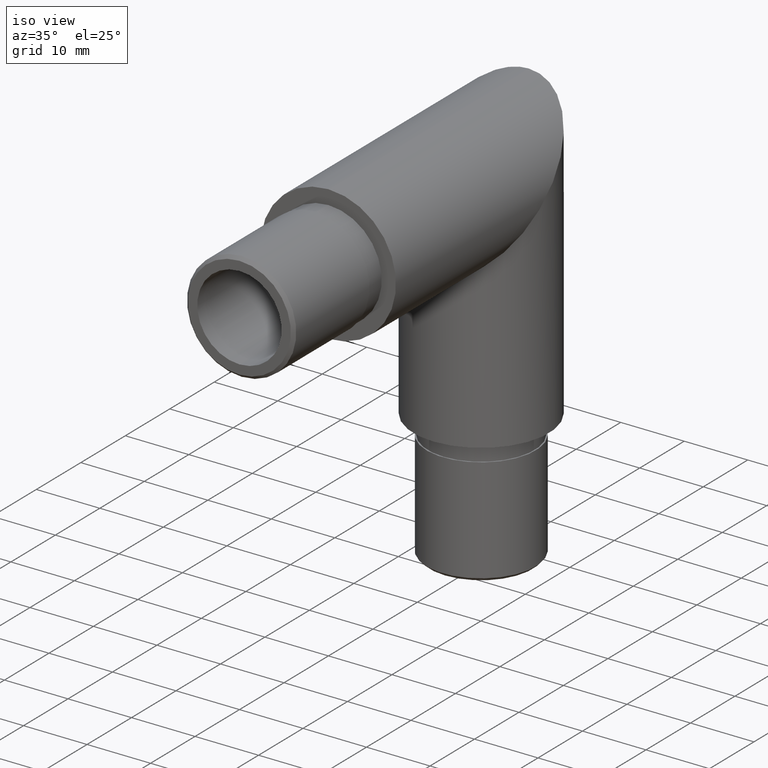
[diagram: clean part render]
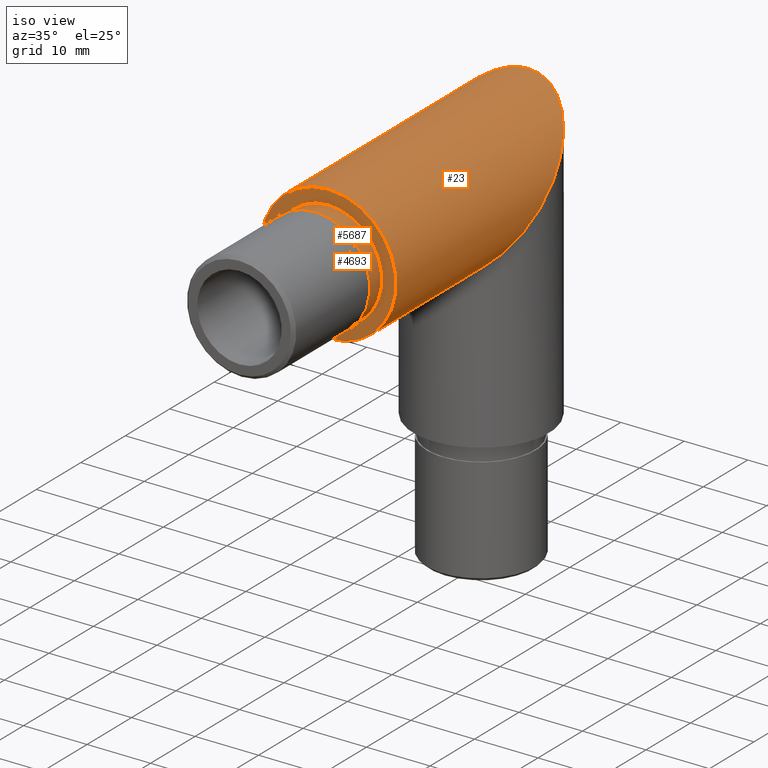
[diagram: same view with one multi-face feature highlighted, each face labeled with its STEP entity id]
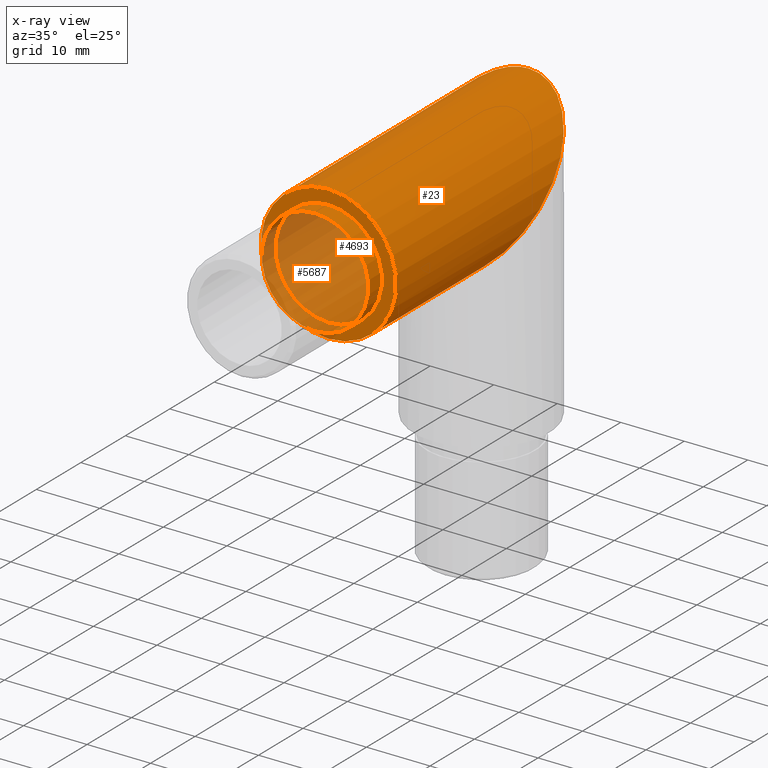
[diagram: x-ray of the same camera — body ghosted, the whole feature saturated]
A machine part, iso view. The highlighted faces form ONE feature: a stepped (counterbored) hole: 2 coaxial cylindrical walls of radii 8.4 -> 10.65 mm joined by 1 annular planar shoulder face(s). The faces share edges in the B-rep.
The next image is the same camera in x-ray: the body ghosted and the whole hole feature saturated, so the bore chain is visible through the body.
Their STEP definitions:
[1] entity #23 (Cylinder):
#23 = ADVANCED_FACE ( 'NONE', ( #12426, #4582 ), #605, .T. ) ;
#605 = CYLINDRICAL_SURFACE ( 'NONE', #1907, 10.65000000000000000 ) ;
#1607 = CARTESIAN_POINT ( 'NONE',  ( 0.0000000000000000000, 23.69999999999995700, -10.65000000000000000 ) ) ;
#1907 = AXIS2_PLACEMENT_3D ( 'NONE', #5739, #2784, #5821 ) ;
#2426 = CARTESIAN_POINT ( 'NONE',  ( -1.304248841091931300E-015, 45.00000000000002800, 10.65000000000000000 ) ) ;
#2784 = DIRECTION ( 'NONE',  ( -0.0000000000000000000, -1.000000000000000000, -0.0000000000000000000 ) ) ;
#3323 = CIRCLE ( 'NONE', #9449, 10.65000000000000000 ) ;
#3521 = CARTESIAN_POINT ( 'NONE',  ( 21.29999999999999700, 23.69999999999995700, -10.65000000000000000 ) ) ;
#4582 = FACE_OUTER_BOUND ( 'NONE', #6563, .T. ) ;
#5596 = DIRECTION ( 'NONE',  ( 0.0000000000000000000, 1.000000000000000000, 0.0000000000000000000 ) ) ;
#5739 = CARTESIAN_POINT ( 'NONE',  ( 0.0000000000000000000, 64.47274887854692300, 0.0000000000000000000 ) ) ;
#5821 = DIRECTION ( 'NONE',  ( 0.0000000000000000000, 0.0000000000000000000, -1.000000000000000000 ) ) ;
#5947 = VERTEX_POINT ( 'NONE', #8782 ) ;
#6037 = EDGE_CURVE ( 'NONE', #9332, #9332, #10335, .T. ) ;
#6563 = EDGE_LOOP ( 'NONE', ( #8832 ) ) ;
#7808 = CARTESIAN_POINT ( 'NONE',  ( 0.0000000000000000000, 0.0000000000000000000, 0.0000000000000000000 ) ) ;
#8604 = CARTESIAN_POINT ( 'NONE',  ( -21.29999999999999700, 23.69999999999995700, -10.65000000000000000 ) ) ;
#8690 = CARTESIAN_POINT ( 'NONE',  ( 0.0000000000000000000, 23.69999999999995700, -10.65000000000000000 ) ) ;
#8727 = CARTESIAN_POINT ( 'NONE',  ( -21.29999999999999700, 45.00000000000002800, 10.64999999999999700 ) ) ;
#8782 = CARTESIAN_POINT ( 'NONE',  ( 0.0000000000000000000, 0.0000000000000000000, 10.65000000000000000 ) ) ;
#8832 = ORIENTED_EDGE ( 'NONE', *, *, #6037, .F. ) ;
#9286 = EDGE_LOOP ( 'NONE', ( #9480 ) ) ;
#9332 = VERTEX_POINT ( 'NONE', #1607 ) ;
#9449 = AXIS2_PLACEMENT_3D ( 'NONE', #7808, #5596, #9843 ) ;
#9480 = ORIENTED_EDGE ( 'NONE', *, *, #9504, .T. ) ;
#9504 = EDGE_CURVE ( 'NONE', #5947, #5947, #3323, .T. ) ;
#9843 = DIRECTION ( 'NONE',  ( 0.0000000000000000000, 0.0000000000000000000, 1.000000000000000000 ) ) ;
#10335 =( BOUNDED_CURVE ( )  B_SPLINE_CURVE ( 3, ( #8690, #8604, #8727, #2426, #10629, #3521, #10671 ),
 .UNSPECIFIED., .T., .F. ) 
 B_SPLINE_CURVE_WITH_KNOTS ( ( 4, 3, 4 ),
 ( 0.0000000000000000000, 3.141592653589793100, 6.283185307179586200 ),
 .UNSPECIFIED. ) 
 CURVE ( )  GEOMETRIC_REPRESENTATION_ITEM ( )  RATIONAL_B_SPLINE_CURVE ( ( 1.000000000000000000, 0.3333333333333333700, 0.3333333333333333700, 1.000000000000000000, 0.3333333333333333700, 0.3333333333333333700, 1.000000000000000000 ) ) 
 REPRESENTATION_ITEM ( '' )  );
#10629 = CARTESIAN_POINT ( 'NONE',  ( 21.29999999999999700, 45.00000000000002800, 10.65000000000000400 ) ) ;
#10671 = CARTESIAN_POINT ( 'NONE',  ( 0.0000000000000000000, 23.69999999999995700, -10.65000000000000000 ) ) ;
#12426 = FACE_OUTER_BOUND ( 'NONE', #9286, .T. ) ;
[2] entity #5687 (Cylinder):
#675 = DIRECTION ( 'NONE',  ( -0.0000000000000000000, 1.000000000000000000, -0.0000000000000000000 ) ) ;
#1644 = CARTESIAN_POINT ( 'NONE',  ( 0.0000000000000000000, -3.000000000000000000, -8.400000000000000400 ) ) ;
#1686 = CARTESIAN_POINT ( 'NONE',  ( 0.0000000000000000000, 0.0000000000000000000, 8.400000000000000400 ) ) ;
#1708 = CARTESIAN_POINT ( 'NONE',  ( 0.0000000000000000000, -3.000000000000000000, 0.0000000000000000000 ) ) ;
#2222 = ORIENTED_EDGE ( 'NONE', *, *, #9035, .T. ) ;
#2604 = DIRECTION ( 'NONE',  ( 0.0000000000000000000, 0.0000000000000000000, 1.000000000000000000 ) ) ;
#3662 = DIRECTION ( 'NONE',  ( 0.0000000000000000000, 0.0000000000000000000, 1.000000000000000000 ) ) ;
#3794 = CIRCLE ( 'NONE', #11574, 8.400000000000000400 ) ;
#4630 = EDGE_LOOP ( 'NONE', ( #2222 ) ) ;
#5022 = VERTEX_POINT ( 'NONE', #1644 ) ;
#5603 = DIRECTION ( 'NONE',  ( -0.0000000000000000000, -1.000000000000000000, -0.0000000000000000000 ) ) ;
#5687 = ADVANCED_FACE ( 'NONE', ( #7689, #11386 ), #10110, .T. ) ;
#5788 = DIRECTION ( 'NONE',  ( 0.0000000000000000000, 0.0000000000000000000, -1.000000000000000000 ) ) ;
#7689 = FACE_OUTER_BOUND ( 'NONE', #9064, .T. ) ;
#8519 = VERTEX_POINT ( 'NONE', #1686 ) ;
#8717 = EDGE_CURVE ( 'NONE', #5022, #5022, #10680, .T. ) ;
#9035 = EDGE_CURVE ( 'NONE', #8519, #8519, #3794, .T. ) ;
#9064 = EDGE_LOOP ( 'NONE', ( #10455 ) ) ;
#9534 = AXIS2_PLACEMENT_3D ( 'NONE', #1708, #10994, #5788 ) ;
#9832 = AXIS2_PLACEMENT_3D ( 'NONE', #10845, #675, #3662 ) ;
#10110 = CYLINDRICAL_SURFACE ( 'NONE', #9832, 8.400000000000000400 ) ;
#10455 = ORIENTED_EDGE ( 'NONE', *, *, #8717, .F. ) ;
#10680 = CIRCLE ( 'NONE', #9534, 8.400000000000000400 ) ;
#10845 = CARTESIAN_POINT ( 'NONE',  ( 0.0000000000000000000, -3.000000000000000000, 0.0000000000000000000 ) ) ;
#10892 = CARTESIAN_POINT ( 'NONE',  ( 0.0000000000000000000, 0.0000000000000000000, 0.0000000000000000000 ) ) ;
#10994 = DIRECTION ( 'NONE',  ( 0.0000000000000000000, -1.000000000000000000, 0.0000000000000000000 ) ) ;
#11386 = FACE_OUTER_BOUND ( 'NONE', #4630, .T. ) ;
#11574 = AXIS2_PLACEMENT_3D ( 'NONE', #10892, #5603, #2604 ) ;
[3] entity #4693 (Plane):
#1686 = CARTESIAN_POINT ( 'NONE',  ( 0.0000000000000000000, 0.0000000000000000000, 8.400000000000000400 ) ) ;
#1913 = ORIENTED_EDGE ( 'NONE', *, *, #9035, .F. ) ;
#2417 = DIRECTION ( 'NONE',  ( 0.0000000000000000000, 1.000000000000000000, 0.0000000000000000000 ) ) ;
#2582 = PLANE ( 'NONE',  #13022 ) ;
#2604 = DIRECTION ( 'NONE',  ( 0.0000000000000000000, 0.0000000000000000000, 1.000000000000000000 ) ) ;
#3323 = CIRCLE ( 'NONE', #9449, 10.65000000000000000 ) ;
#3600 = DIRECTION ( 'NONE',  ( 0.0000000000000000000, -0.0000000000000000000, 1.000000000000000000 ) ) ;
#3794 = CIRCLE ( 'NONE', #11574, 8.400000000000000400 ) ;
#4693 = ADVANCED_FACE ( 'NONE', ( #10108, #11243 ), #2582, .F. ) ;
#5596 = DIRECTION ( 'NONE',  ( 0.0000000000000000000, 1.000000000000000000, 0.0000000000000000000 ) ) ;
#5603 = DIRECTION ( 'NONE',  ( -0.0000000000000000000, -1.000000000000000000, -0.0000000000000000000 ) ) ;
#5947 = VERTEX_POINT ( 'NONE', #8782 ) ;
#6488 = ORIENTED_EDGE ( 'NONE', *, *, #9504, .F. ) ;
#7359 = EDGE_LOOP ( 'NONE', ( #1913 ) ) ;
#7808 = CARTESIAN_POINT ( 'NONE',  ( 0.0000000000000000000, 0.0000000000000000000, 0.0000000000000000000 ) ) ;
#8519 = VERTEX_POINT ( 'NONE', #1686 ) ;
#8782 = CARTESIAN_POINT ( 'NONE',  ( 0.0000000000000000000, 0.0000000000000000000, 10.65000000000000000 ) ) ;
#9035 = EDGE_CURVE ( 'NONE', #8519, #8519, #3794, .T. ) ;
#9449 = AXIS2_PLACEMENT_3D ( 'NONE', #7808, #5596, #9843 ) ;
#9504 = EDGE_CURVE ( 'NONE', #5947, #5947, #3323, .T. ) ;
#9843 = DIRECTION ( 'NONE',  ( 0.0000000000000000000, 0.0000000000000000000, 1.000000000000000000 ) ) ;
#10108 = FACE_OUTER_BOUND ( 'NONE', #12025, .T. ) ;
#10892 = CARTESIAN_POINT ( 'NONE',  ( 0.0000000000000000000, 0.0000000000000000000, 0.0000000000000000000 ) ) ;
#11243 = FACE_BOUND ( 'NONE', #7359, .T. ) ;
#11574 = AXIS2_PLACEMENT_3D ( 'NONE', #10892, #5603, #2604 ) ;
#11764 = CARTESIAN_POINT ( 'NONE',  ( 0.0000000000000000000, 0.0000000000000000000, 0.0000000000000000000 ) ) ;
#12025 = EDGE_LOOP ( 'NONE', ( #6488 ) ) ;
#13022 = AXIS2_PLACEMENT_3D ( 'NONE', #11764, #2417, #3600 ) ;